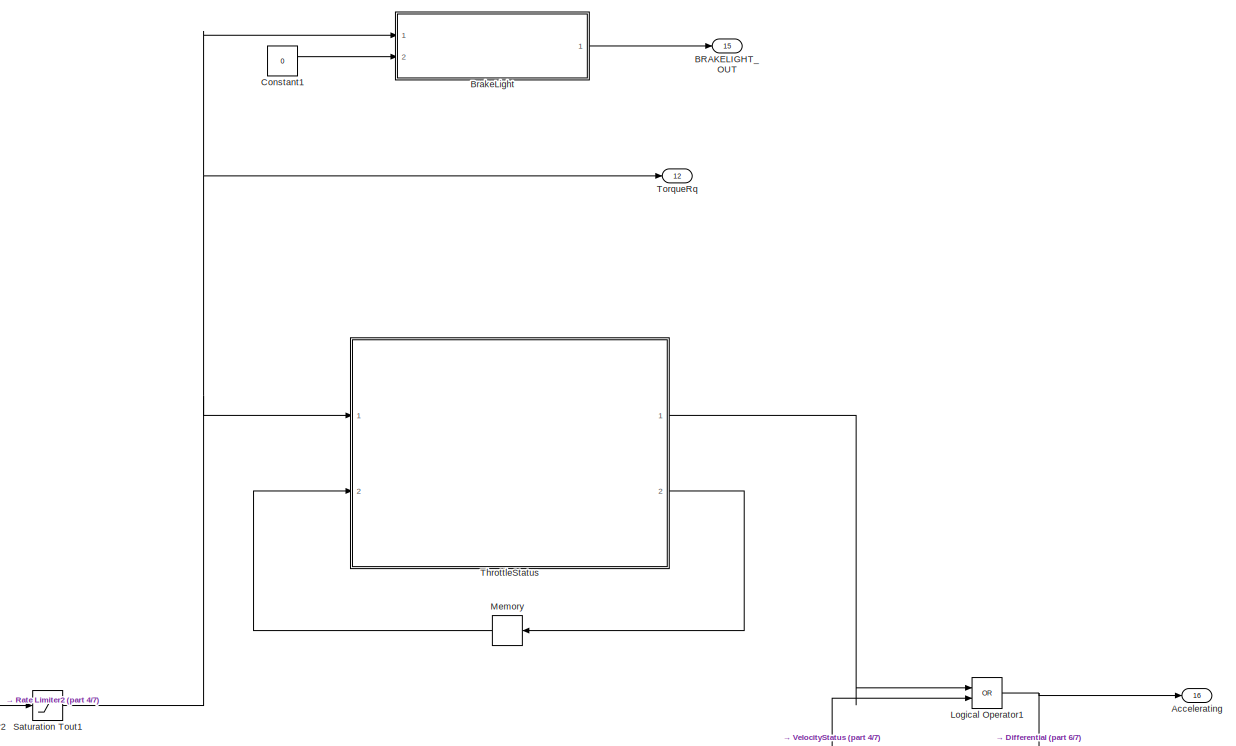
[diagram: root canvas - part 1/7, top right region]
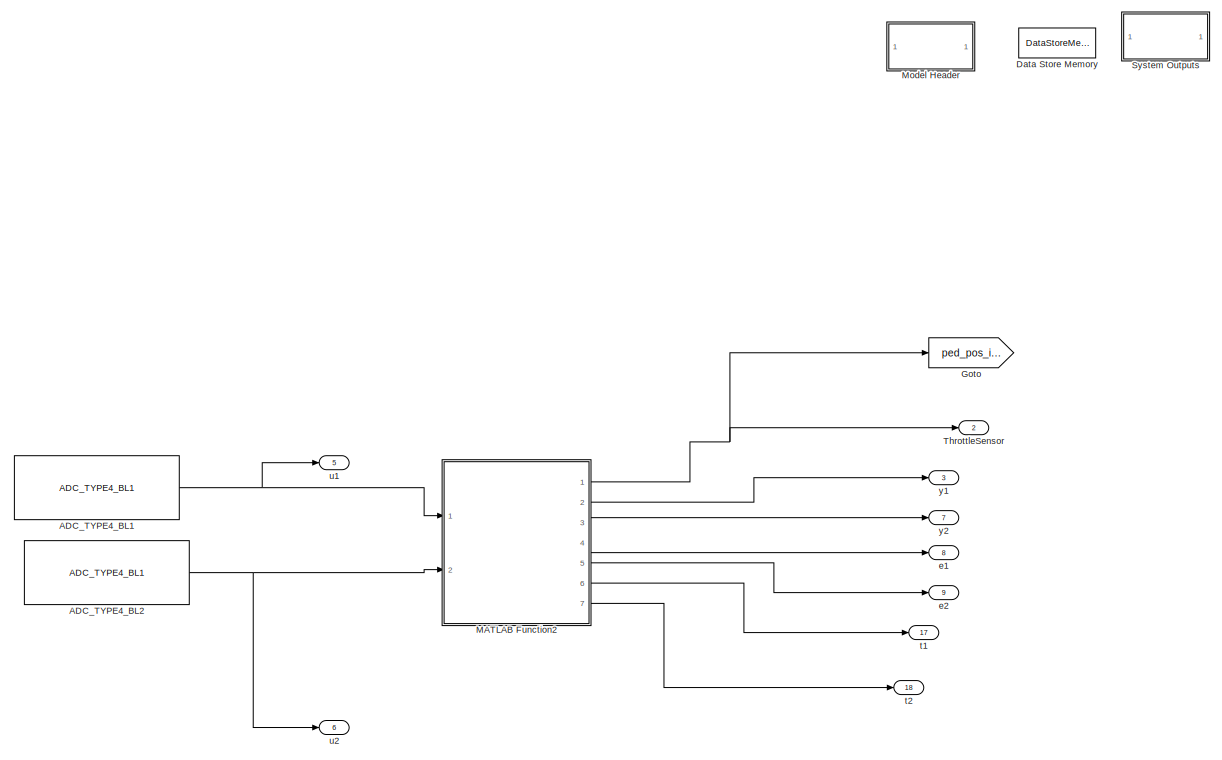
[diagram: root canvas - part 2/7, middle left region]
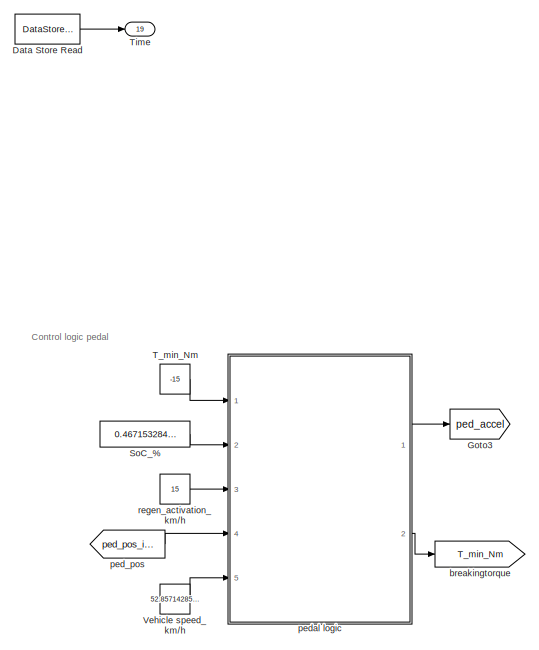
[diagram: root canvas - part 3/7, central region]
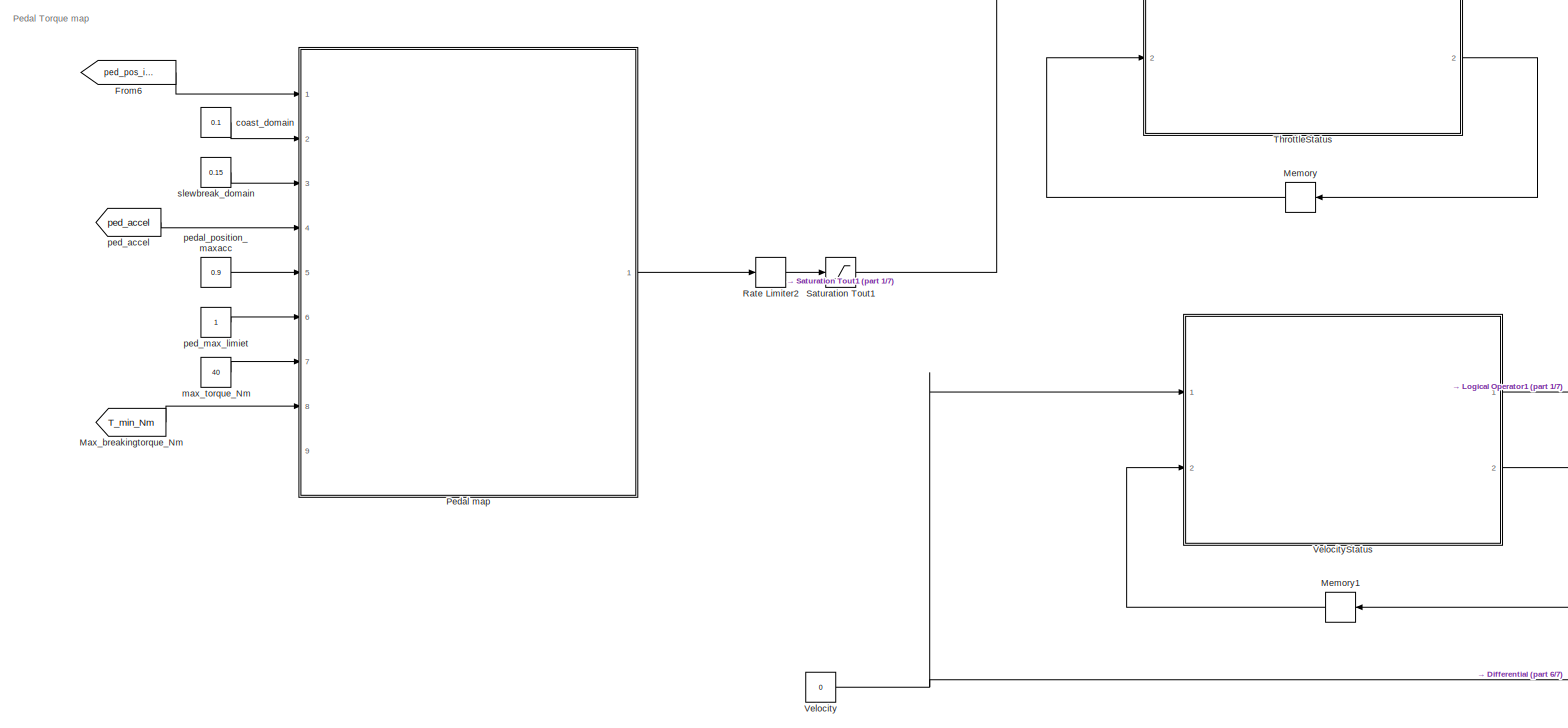
[diagram: root canvas - part 4/7, central region]
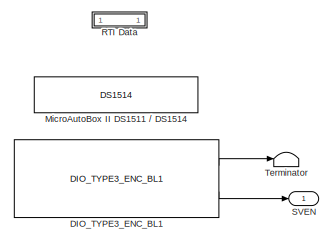
[diagram: root canvas - part 5/7, middle left region]
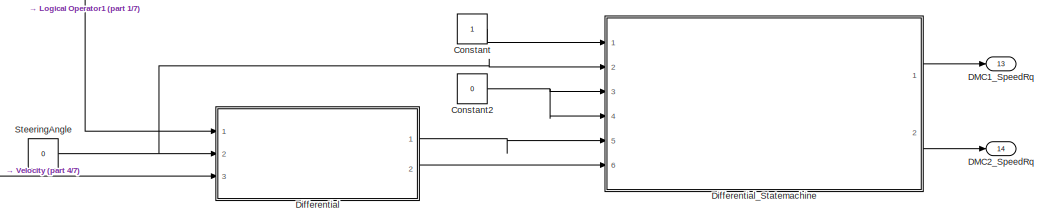
[diagram: root canvas - part 6/7, bottom right region]
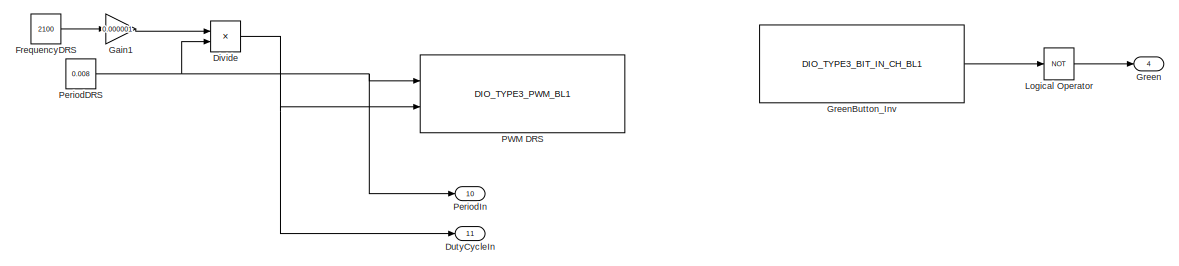
[diagram: root canvas - part 7/7, bottom left region]
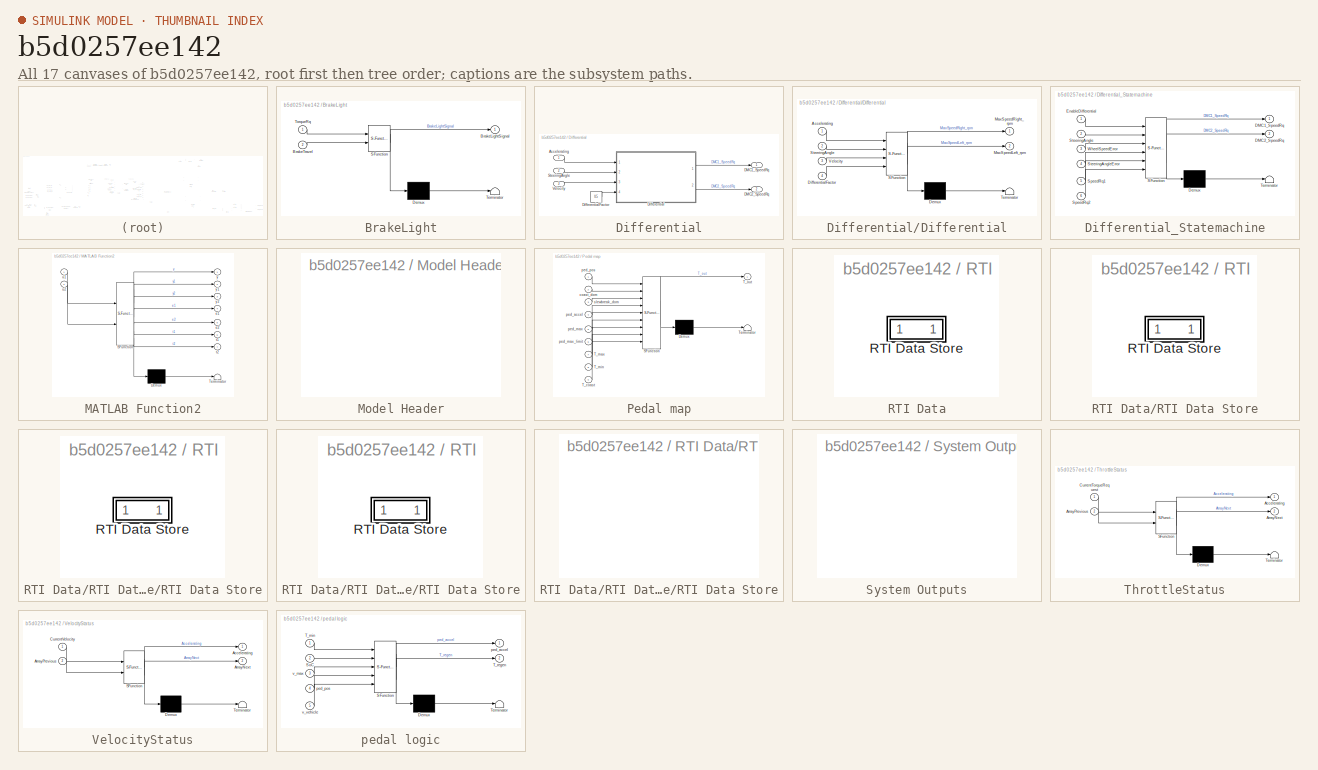
[diagram: thumbnail index - all 17 canvases of the model, root first then tree order]
MODEL slx_b5d0257ee142
KIND model
CONFIG AbsTol = auto
CONFIG FixedStep = 0.001
CONFIG MaxStep = auto
CONFIG MinStep = auto
CONFIG PostLoadFcn = , if any(exist('dsrtsu_mdlpostloadfcn', 'file') == [2, 3, 6]), try dsrtsu_mdlpostloadfcn('Execute', bdroot); catch fprintf('Error in PostLoadFcn (dsrtsu_mdlpostloadfcn) for model "%s":\n %s\n', bdroot, lasterr); end, end, \n
CONFIG RelTol = 1e-3
CONFIG SampleTimeConstraint = Unconstrained
CONFIG Solver = ode1
CONFIG SolverMode = Auto
CONFIG SolverName = ode1
CONFIG StartTime = 0.0
CONFIG StopTime = Inf
BLOCK [Reference] ADC_TYPE4_BL1  REF=rti1401lib_adc_type4/ADC_TYPE4_BL1
  DSProperties = struct('RTI',struct('Version',uint32(2),'BlockType',struct('isSLSource',uint8(1),'isSLSink',uint8(1),'isHWSource',uint8(0),'isHWSink',uint8(1),'isSetup',uint8(0),'isInline',uint8(1),'isNonInline',uint8(0),'isInterrupt',uint8(0),'isChannelwise',uint8(1)),'IOBoardType',{{'DS1401','STD','ADCT4'}},'UnitType','ADC','Identifier','ADC','DialogType','ML','BlockSet','NONE','SlaveProcessor','NONE'))
  Ports = [0, 1]
  RTIBlockInterface = struct('InputPortsActive',0,'InputPortsWidth',int32(1),'InputPortsDataType',{{'SS_BOOLEAN'}},'InputPortsName',{{'Continue'}},'OutputPortsActive',[1 0],'OutputPortsWidth',int32([1 1]),'OutputPortsDataType',{{'SS_DOUBLE','SS_UINT8'}},'OutputPortsName',{{'ADC','Status'}},'DialogFcn','rti1401stdadct4adcgui','SampleTime',{{-1}},'InitLevel',3,'IconTransparency','on','BlockDisplay',{{['ADC TP4\nModule: 1...<+74ch>
  RTIBlockParaDefault = struct('ADCSWStartDisable',0,'ModuleNo',1,'ChannelNo',1,'ConversionMode',1,'SampleMode',1,'TriggerSource',1,'EdgePolarity',1,'ConversionTriggerSource',2,'ConversionEdgePolarity',1,'ConversionPeriod',1e-06,'ConversionPeriodCheck',0,'BurstTriggerSource',1,'BurstEdgePolarity',1,'BurstSize',10,'BurstSizeCheck',0,'DataSetOffset',0,'DataSetOffsetCheck',0,'DataSetLength',1,'DataSetLengthCheck',0,'ReadMod...<+113ch>
  RTIBlockParameters = struct('ADCSWStartDisable',{{0,'OFF',[0 1]}},'ModuleNo',{{1,'OFF',[1 16]}},'ChannelNo',{{1,'OFF',[1 16]}},'ConversionMode',{{1,'OFF',[1 2]}},'SampleMode',{{1,'OFF',[1 2]}},'TriggerSource',{{1,'OFF',[1 5]}},'EdgePolarity',{{1,'OFF',[1 2]}},'ConversionTriggerSource',{{2,'OFF',[1 6]}},'ConversionEdgePolarity',{{1,'OFF',[1 2]}},'ConversionPeriod',{{1e-06,'OFF',[]}},'ConversionPeriodCheck',{{0,'OFF',[]...<+488ch>
  RTISFcnParameters = struct('ADCSWStartDisable','int32','ModuleNo','int32','ChannelNo','int16','ConversionMode','int16','SampleMode','int16','TriggerSource','int16','EdgePolarity','int16','ConversionTriggerSource','int16','ConversionEdgePolarity','int16','ConversionPeriod','double','BurstTriggerSource','int16','BurstEdgePolarity','int16','BurstSize','int16','DataSetOffset','int16','DataSetLength','int16','ReadMode','i...<+99ch>
  SourceBlock = rti1401lib_adc_type4/ADC_TYPE4_BL1
  SourceType = RTI
BLOCK [Reference] ADC_TYPE4_BL2  REF=rti1401lib_adc_type4/ADC_TYPE4_BL1
  DSProperties = struct('RTI',struct('Version',uint32(2),'BlockType',struct('isSLSource',uint8(1),'isSLSink',uint8(1),'isHWSource',uint8(0),'isHWSink',uint8(1),'isSetup',uint8(0),'isInline',uint8(1),'isNonInline',uint8(0),'isInterrupt',uint8(0),'isChannelwise',uint8(1)),'IOBoardType',{{'DS1401','STD','ADCT4'}},'UnitType','ADC','Identifier','ADC','DialogType','ML','BlockSet','NONE','SlaveProcessor','NONE'))
  Ports = [0, 1]
  RTIBlockInterface = struct('InputPortsActive',0,'InputPortsWidth',int32(1),'InputPortsDataType',{{'SS_BOOLEAN'}},'InputPortsName',{{'Continue'}},'OutputPortsActive',[1 0],'OutputPortsWidth',int32([1 1]),'OutputPortsDataType',{{'SS_DOUBLE','SS_UINT8'}},'OutputPortsName',{{'ADC','Status'}},'DialogFcn','rti1401stdadct4adcgui','SampleTime',{{-1}},'InitLevel',3,'IconTransparency','on','BlockDisplay',{{['ADC TP4\nModule: 1...<+74ch>
  RTIBlockParaDefault = struct('ADCSWStartDisable',0,'ModuleNo',1,'ChannelNo',1,'ConversionMode',1,'SampleMode',1,'TriggerSource',1,'EdgePolarity',1,'ConversionTriggerSource',2,'ConversionEdgePolarity',1,'ConversionPeriod',1e-06,'ConversionPeriodCheck',0,'BurstTriggerSource',1,'BurstEdgePolarity',1,'BurstSize',10,'BurstSizeCheck',0,'DataSetOffset',0,'DataSetOffsetCheck',0,'DataSetLength',1,'DataSetLengthCheck',0,'ReadMod...<+113ch>
  RTIBlockParameters = struct('ADCSWStartDisable',{{0,'OFF',[0 1]}},'ModuleNo',{{1,'OFF',[1 16]}},'ChannelNo',{{5,'OFF',[1 16]}},'ConversionMode',{{1,'OFF',[1 2]}},'SampleMode',{{1,'OFF',[1 2]}},'TriggerSource',{{1,'OFF',[1 5]}},'EdgePolarity',{{1,'OFF',[1 2]}},'ConversionTriggerSource',{{2,'OFF',[1 6]}},'ConversionEdgePolarity',{{1,'OFF',[1 2]}},'ConversionPeriod',{{'1e-06','OFF',[]}},'ConversionPeriodCheck',{{0,'OFF',...<+498ch>
  RTISFcnParameters = struct('ADCSWStartDisable','int32','ModuleNo','int32','ChannelNo','int16','ConversionMode','int16','SampleMode','int16','TriggerSource','int16','EdgePolarity','int16','ConversionTriggerSource','int16','ConversionEdgePolarity','int16','ConversionPeriod','double','BurstTriggerSource','int16','BurstEdgePolarity','int16','BurstSize','int16','DataSetOffset','int16','DataSetLength','int16','ReadMode','i...<+99ch>
  SourceBlock = rti1401lib_adc_type4/ADC_TYPE4_BL1
  SourceType = RTI
BLOCK [Outport] Accelerating
  IconDisplay = Port number
  Port = 16
BLOCK [Outport] BRAKELIGHT_OUT
  IconDisplay = Port number
  Port = 15
BLOCK [SubSystem] BrakeLight
  ErrorFcn = Stateflow.Translate.translate
  PermitHierarchicalResolution = ExplicitOnly
  Ports = [2, 1]
  RequestExecContextInheritance = off
  SFBlockType = MATLAB Function
  TreatAsAtomicUnit = on
BLOCK [Demux] BrakeLight/ Demux 
  Outputs = 1
  Ports = [1, 1]
BLOCK [S-Function] BrakeLight/ SFunction 
  EnableBusSupport = on
  FunctionName = sf_sfun
  PortCounts = [2 2]
  Ports = [2, 2]
  Tag = Stateflow S-Function HallSensorTest 4
BLOCK [Terminator] BrakeLight/ Terminator 
BLOCK [Outport] BrakeLight/BrakeLightSignal
  IconDisplay = Port number
BLOCK [Inport] BrakeLight/BrakeTravel
  IconDisplay = Port number
  Port = 2
BLOCK [Inport] BrakeLight/TorqueRq
  IconDisplay = Port number
BLOCK [Constant] Constant
BLOCK [Constant] Constant1
  Value = 0
BLOCK [Constant] Constant2
  Value = 0
BLOCK [Reference] DIO_TYPE3_ENC_BL1  REF=rti1401lib_dio_type3/DIO_TYPE3_ENC_BL1
  DSProperties = struct('RTI',struct('Version',uint32(2),'BlockType',struct('isSLSource',uint8(1),'isSLSink',uint8(0),'isHWSource',uint8(1),'isHWSink',uint8(0),'isSetup',uint8(0),'isInline',uint8(1),'isNonInline',uint8(0),'isInterrupt',uint8(0),'isChannelwise',uint8(1)),'IOBoardType',{{'DS1401','STD','DIOT3'}},'UnitType','ENC','Identifier','ENC','DialogType','ML','BlockSet','NONE','SlaveProcessor','NONE'))
  Ports = [0, 2]
  RTIBlockInterface = struct('OutputPortsWidth',int32([1 1]),'OutputPortsActive',[1 1],'OutputPortsName',{{'Position','Speed'}},'BlockDisplay',{{['DIO TP3 ENCODER\nModule: 1\nPort: 1\nChannel: 3'],'center'}},'IconTransparency','on','InitLevel',3,'DialogFcn','rti1401stddiot3encgui','BlockName',struct('Token',{{'DIO_TYPE3_ENC_BL1'}}))
  RTIBlockParaDefault = struct('ModuleNo',1,'PortNo',1,'ChannelNo',1,'MinPosValue',-2097152,'MaxPosValue',2097151.75,'InitPosValue',0,'IndexSetMode',1,'IndexPosValue',0,'IndexGateMode',0,'NoiseFilter',1,'BuildCheckIndexMode',0,'TLCFileName','rti1401dio_t3_enc','EnableInterrupt',0,'TriggerEdgeType',1)
  RTIBlockParameters = struct('ModuleNo',{{1,'OFF',[1 16]}},'PortNo',{{1,'OFF',[1 3]}},'ChannelNo',{{3,'OFF',[1 15]}},'MinPosValue',{{'-2097152','ON',[-2097152 2097151.5]}},'MaxPosValue',{{'2097151.75','ON',[-2097151.75 2097151.75]}},'InitPosValue',{{'0','ON',[-2097152 2097151.75]}},'IndexSetMode',{{1,'OFF',[1 3]}},'IndexPosValue',{{'0','ON',[-2097152 2097151.75]}},'IndexGateMode',{{0,'OFF',[0 1]}},'NoiseFilter',{{1,'OF...<+170ch>
  RTISFcnParameters = struct('ModuleNo','int32','PortNo','int16','ChannelNo','int16','MinPosValue','double','MaxPosValue','double','InitPosValue','double','IndexSetMode','int16','IndexPosValue','double','IndexGateMode','int16','NoiseFilter','int16','BuildCheckIndexMode','int16','TLCFileName','char','EnableInterrupt','int16','TriggerEdgeType','int32')
  SourceBlock = rti1401lib_dio_type3/DIO_TYPE3_ENC_BL1
  SourceType = RTI
BLOCK [Outport] DMC1_SpeedRq
  IconDisplay = Port number
  Port = 13
BLOCK [Outport] DMC2_SpeedRq
  IconDisplay = Port number
  Port = 14
BLOCK [DataStoreMemory] Data Store Memory
  DataStoreName = CurrentTime
  RTWStateStorageClass = ExportedGlobal
  ReadBeforeWriteMsg = warning
  WriteAfterReadMsg = warning
  WriteAfterWriteMsg = warning
BLOCK [DataStoreRead] Data Store Read
  DataStoreName = CurrentTime
  Ports = [0, 1]
BLOCK [SubSystem] Differential
  Ports = [3, 2]
  RequestExecContextInheritance = off
BLOCK [Inport] Differential/Accelerating
  IconDisplay = Port number
BLOCK [Outport] Differential/DMC1_SpeedRq
  IconDisplay = Port number
BLOCK [Outport] Differential/DMC2_SpeedRq
  IconDisplay = Port number
  Port = 2
BLOCK [SubSystem] Differential/Differential
  ErrorFcn = Stateflow.Translate.translate
  PermitHierarchicalResolution = ExplicitOnly
  Ports = [4, 2]
  RequestExecContextInheritance = off
  SFBlockType = MATLAB Function
  TreatAsAtomicUnit = on
BLOCK [Demux] Differential/Differential/ Demux 
  Outputs = 1
  Ports = [1, 1]
BLOCK [S-Function] Differential/Differential/ SFunction 
  EnableBusSupport = on
  FunctionName = sf_sfun
  PortCounts = [4 3]
  Ports = [4, 3]
  Tag = Stateflow S-Function HallSensorTest 15
BLOCK [Terminator] Differential/Differential/ Terminator 
BLOCK [Inport] Differential/Differential/Accelerating
  IconDisplay = Port number
BLOCK [Inport] Differential/Differential/DifferentialFactor
  IconDisplay = Port number
  Port = 4
BLOCK [Outport] Differential/Differential/MaxSpeedLeft_rpm
  IconDisplay = Port number
  Port = 2
BLOCK [Outport] Differential/Differential/MaxSpeedRight_rpm
  IconDisplay = Port number
BLOCK [Inport] Differential/Differential/SteeringAngle
  IconDisplay = Port number
  Port = 2
BLOCK [Inport] Differential/Differential/Velocity
  IconDisplay = Port number
  Port = 3
BLOCK [Constant] Differential/DifferentialFactor
  Value = 0.5
BLOCK [Inport] Differential/SteeringAngle
  IconDisplay = Port number
  Port = 2
BLOCK [Inport] Differential/Velocity
  IconDisplay = Port number
  Port = 3
BLOCK [SubSystem] Differential_Statemachine
  ErrorFcn = Stateflow.Translate.translate
  PermitHierarchicalResolution = ExplicitOnly
  Ports = [6, 2]
  RequestExecContextInheritance = off
  SFBlockType = Chart
  TreatAsAtomicUnit = on
BLOCK [Demux] Differential_Statemachine/ Demux 
  Outputs = 1
  Ports = [1, 1]
BLOCK [S-Function] Differential_Statemachine/ SFunction 
  EnableBusSupport = on
  FunctionName = sf_sfun
  PortCounts = [6 3]
  Ports = [6, 3]
  Tag = Stateflow S-Function HallSensorTest 14
BLOCK [Terminator] Differential_Statemachine/ Terminator 
BLOCK [Outport] Differential_Statemachine/DMC1_SpeedRq
  IconDisplay = Port number
BLOCK [Outport] Differential_Statemachine/DMC2_SpeedRq
  IconDisplay = Port number
  Port = 2
BLOCK [Inport] Differential_Statemachine/EnableDifferential
  IconDisplay = Port number
BLOCK [Inport] Differential_Statemachine/SpeedRq1
  IconDisplay = Port number
  Port = 5
BLOCK [Inport] Differential_Statemachine/SpeedRq2
  IconDisplay = Port number
  Port = 6
BLOCK [Inport] Differential_Statemachine/SteeringAngle
  IconDisplay = Port number
  Port = 2
BLOCK [Inport] Differential_Statemachine/SteeringAngleError
  IconDisplay = Port number
  Port = 4
BLOCK [Inport] Differential_Statemachine/WheelSpeedError
  IconDisplay = Port number
  Port = 3
BLOCK [Product] Divide
  InputSameDT = off
  Inputs = */
  OutDataTypeStr = Inherit: Inherit via internal rule
  Ports = [2, 1]
  RndMeth = Floor
  SaturateOnIntegerOverflow = off
BLOCK [Outport] DutyCycleIn
  IconDisplay = Port number
  Port = 11
BLOCK [Constant] FrequencyDRS
  Value = 2100
BLOCK [From] From6
  GotoTag = ped_pos_idle
BLOCK [Gain] Gain1
  Gain = 0.000001
  OutDataTypeStr = Inherit: Inherit via internal rule
  ParamDataTypeStr = Inherit: Inherit via internal rule
  SaturateOnIntegerOverflow = off
BLOCK [Goto] Goto
  GotoTag = ped_pos_idle
BLOCK [Goto] Goto3
  GotoTag = ped_accel
BLOCK [Outport] Green
  IconDisplay = Port number
  Port = 4
BLOCK [Reference] GreenButton_Inv  REF=rti1401lib_dio_type3/DIO_TYPE3_BIT_IN_CH_BL1
  DSProperties = struct('RTI',struct('Version',uint32(2),'BlockType',struct('isSLSource',uint8(1),'isSLSink',uint8(0),'isHWSource',uint8(1),'isHWSink',uint8(0),'isSetup',uint8(0),'isInline',uint8(1),'isNonInline',uint8(0),'isInterrupt',uint8(0),'isChannelwise',uint8(1)),'IOBoardType',{{'DS1401','STD','DIOT3'}},'UnitType','BIT','Identifier','BITINCH','DialogType','ML','BlockSet','NONE','SlaveProcessor','NONE'))
  Ports = [0, 1]
  RTIBlockInterface = struct('OutputPortsWidth',int32(1),'OutputPortsDataType',{{'SS_BOOLEAN'}},'OutputPortsActive',1,'OutputPortsName',{{'Out'}},'BlockDisplay',{{['DIO TP3 BIT IN\n Channelwise\nModule: 1\nPort: 1\nChannel: 1'],'center'}},'IconTransparency','on','InitLevel',3,'DialogFcn','rti1401stddiot3bitinchgui','BlockName',struct('Token',{{'DIO_TYPE3_BIT_IN_CH_BL1'}}))
  RTIBlockParaDefault = struct('ModuleNo',1,'PortNo',1,'ChannelNo',1,'TLCFileName','rti1401dio_t3_bit_in_ch','EnableInterrupt',0,'TriggerEdgeType',1)
  RTIBlockParameters = struct('ModuleNo',{{1,'OFF',[1 16]}},'PortNo',{{1,'OFF',[1 3]}},'ChannelNo',{{1,'OFF',[1 16]}},'TLCFileName',{{'rti1401dio_t3_bit_in_ch','OFF',[]}},'EnableInterrupt',{{0,'OFF',[0 1]}},'TriggerEdgeType',{{1,'OFF',[1 3]}})
  RTISFcnParameters = struct('ModuleNo','int32','PortNo','int16','ChannelNo','int16','TLCFileName','char','EnableInterrupt','int16','TriggerEdgeType','int32')
  SourceBlock = rti1401lib_dio_type3/DIO_TYPE3_BIT_IN_CH_BL1
  SourceType = RTI
BLOCK [Logic] Logical Operator
  AllPortsSameDT = off
  Operator = NOT
  OutDataTypeStr = boolean
  Ports = [1, 1]
BLOCK [Logic] Logical Operator1
  AllPortsSameDT = off
  Operator = OR
  OutDataTypeStr = boolean
  Ports = [2, 1]
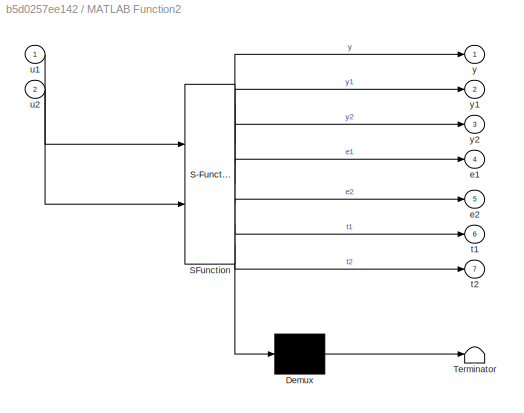
BLOCK [SubSystem] MATLAB Function2
  ErrorFcn = Stateflow.Translate.translate
  PermitHierarchicalResolution = ExplicitOnly
  Ports = [2, 7]
  RequestExecContextInheritance = off
  SFBlockType = MATLAB Function
  TreatAsAtomicUnit = on
BLOCK [Demux] MATLAB Function2/ Demux 
  Outputs = 1
  Ports = [1, 1]
BLOCK [S-Function] MATLAB Function2/ SFunction 
  EnableBusSupport = on
  FunctionName = sf_sfun
  PortCounts = [2 8]
  Ports = [2, 8]
  Tag = Stateflow S-Function HallSensorTest 12
BLOCK [Terminator] MATLAB Function2/ Terminator 
BLOCK [Outport] MATLAB Function2/e1
  IconDisplay = Port number
  Port = 4
BLOCK [Outport] MATLAB Function2/e2
  IconDisplay = Port number
  Port = 5
BLOCK [Outport] MATLAB Function2/t1
  IconDisplay = Port number
  Port = 6
BLOCK [Outport] MATLAB Function2/t2
  IconDisplay = Port number
  Port = 7
BLOCK [Inport] MATLAB Function2/u1
  IconDisplay = Port number
BLOCK [Inport] MATLAB Function2/u2
  IconDisplay = Port number
  Port = 2
BLOCK [Outport] MATLAB Function2/y
  IconDisplay = Port number
BLOCK [Outport] MATLAB Function2/y1
  IconDisplay = Port number
  Port = 2
BLOCK [Outport] MATLAB Function2/y2
  IconDisplay = Port number
  Port = 3
BLOCK [From] Max_breakingtorque_Nm
  GotoTag = T_min_Nm
BLOCK [Memory] Memory
  InheritSampleTime = on
  X0 = zeros(10,1)
BLOCK [Memory] Memory1
  InheritSampleTime = on
  X0 = zeros(10,1)
BLOCK [Reference] MicroAutoBox II DS1511 // DS1514  REF=rtilib1401/MicroAutoBox II DS1511 // DS1514
  FunctionWithSeparateData = off
  GeneratePreprocessorConditionals = off
  Ports = []
  ShowPortLabels = FromPortIcon
  SourceBlock = rtilib1401/MicroAutoBox II DS1511 // DS1514
  SourceType = DSBUTTON
  SystemSampleTime = -1
BLOCK [SubSystem] Model Header
  CopyFcn = cccopyfcn(gcb)
  OpenFcn = ccopenfcn('Model Header')
  Ports = []
  RequestExecContextInheritance = off
BLOCK [Reference] PWM DRS  REF=rti1401lib_dio_type3/DIO_TYPE3_PWM_BL1
  DSProperties = struct('RTI',struct('Version',uint32(2),'BlockType',struct('isSLSource',uint8(0),'isSLSink',uint8(1),'isHWSource',uint8(0),'isHWSink',uint8(1),'isSetup',uint8(0),'isInline',uint8(1),'isNonInline',uint8(0),'isInterrupt',uint8(0),'isChannelwise',uint8(1)),'IOBoardType',{{'DS1401','STD','DIOT3'}},'UnitType','PWM','Identifier','PWM','DialogType','ML','BlockSet','NONE','SlaveProcessor','NONE'))
  Ports = [2]
  RTIBlockInterface = struct('InputPortsWidth',int32([1 1]),'InputPortsActive',[1 1],'InputPortsName',{{'Period',['Duty Cycle']}},'BlockDisplay',{{['DIO TP3 PWM\nModule: 1\nPort: 1\nChannel: 7'],'center'}},'IconTransparency','on','InitLevel',3,'DialogFcn','rti1401stddiot3pwmgui','BlockName',struct('Token',{{'DIO_TYPE3_PWM_BL1'}}))
  RTIBlockParaDefault = struct('ModuleNo',1,'PortNo',1,'ChannelNo',1,'SupplyRailsCh',[1 1],'UpdateMode',1,'PeriodRange',7,'DutyCycleInit',0,'PeriodInit',5e-05,'TerminationMode',0,'OutputTermValidate',0,'OutputTermBuildCheck',0,'DutyCycleTerm',0,'PeriodTerm',5e-05,'TLCFileName','rti1401dio_t3_pwm','EnableInterrupt',0,'TriggerEdgeType',1)
  RTIBlockParameters = struct('ModuleNo',{{1,'OFF',[1 16]}},'PortNo',{{1,'OFF',[1 3]}},'ChannelNo',{{7,'OFF',[1 16]}},'SupplyRailsCh',{{[1 1],'OFF',[0 1 0 1]}},'UpdateMode',{{1,'ON',[1 2]}},'PeriodRange',{{7,'OFF',[1 16]}},'DutyCycleInit',{{'0','OFF',[0 1]}},'PeriodInit',{{'5e-05','OFF',[]}},'TerminationMode',{{0,'OFF',[0 1]}},'OutputTermValidate',{{0,'OFF',[0 1]}},'OutputTermBuildCheck',{{0,'OFF',[]}},'DutyCycleTerm',{...<+172ch>
  RTISFcnParameters = struct('ModuleNo','int32','PortNo','int16','ChannelNo','int16','SupplyRailsCh','int16','UpdateMode','int16','PeriodRange','int16','DutyCycleInit','double','PeriodInit','double','TerminationMode','int16','OutputTermValidate','int16','DutyCycleTerm','double','PeriodTerm','double','TLCFileName','char','EnableInterrupt','int16','TriggerEdgeType','int32')
  SourceBlock = rti1401lib_dio_type3/DIO_TYPE3_PWM_BL1
  SourceType = RTI
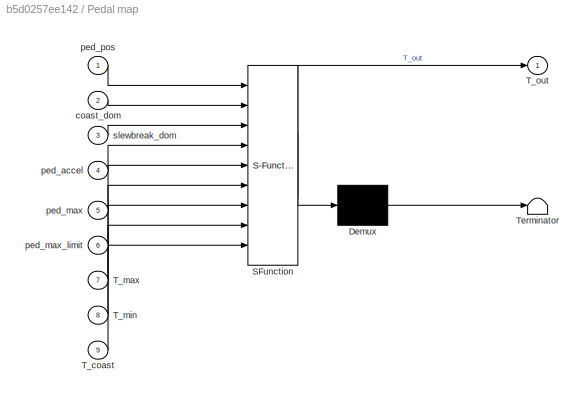
BLOCK [SubSystem] Pedal map
  ErrorFcn = Stateflow.Translate.translate
  PermitHierarchicalResolution = ExplicitOnly
  Ports = [9, 1]
  RequestExecContextInheritance = off
  SFBlockType = MATLAB Function
  TreatAsAtomicUnit = on
BLOCK [Demux] Pedal map/ Demux 
  Outputs = 1
  Ports = [1, 1]
BLOCK [S-Function] Pedal map/ SFunction 
  EnableBusSupport = on
  FunctionName = sf_sfun
  PortCounts = [9 2]
  Ports = [9, 2]
  Tag = Stateflow S-Function HallSensorTest 8
BLOCK [Terminator] Pedal map/ Terminator 
BLOCK [Inport] Pedal map/T_coast
  IconDisplay = Port number
  Port = 9
BLOCK [Inport] Pedal map/T_max
  IconDisplay = Port number
  Port = 7
BLOCK [Inport] Pedal map/T_min
  IconDisplay = Port number
  Port = 8
BLOCK [Outport] Pedal map/T_out
  IconDisplay = Port number
BLOCK [Inport] Pedal map/coast_dom
  IconDisplay = Port number
  Port = 2
BLOCK [Inport] Pedal map/ped_accel
  IconDisplay = Port number
  Port = 4
BLOCK [Inport] Pedal map/ped_max
  IconDisplay = Port number
  Port = 5
BLOCK [Inport] Pedal map/ped_max_limit
  IconDisplay = Port number
  Port = 6
BLOCK [Inport] Pedal map/ped_pos
  IconDisplay = Port number
BLOCK [Inport] Pedal map/slewbreak_dom
  IconDisplay = Port number
  Port = 3
BLOCK [Constant] PeriodDRS
  Value = 0.008
BLOCK [Outport] PeriodIn
  IconDisplay = Port number
  Port = 10
BLOCK [SubSystem] RTI Data
  CopyFcn = if exist('rtidc'), try,  rtidc('DataHostBlockClbCopy', gcbh); catch, disp(['Warning: ''CopyFcn'' for RTI Data block failed: ' lasterr]); end, end,
  DeleteFcn = if exist('rtidc'), try,  rtidc('DataHostBlockClbDelete', gcbh); catch, disp(['Warning: ''DeleteFcn'' for RTI Data block failed: ' lasterr]); end, end,
  LoadFcn = if exist('rtidc'), try,  rtidc('DataHostBlockClbLoad', gcbh); catch, disp(['Warning: ''LoadFcn'' for RTI Data block failed: ' lasterr]); end, end,
  ModelCloseFcn = if exist('rtidc'), try,  rtidc('DataHostBlockClbModelClose', gcbh); catch, disp(['Warning: ''ModelCloseFcn'' for RTI Data block failed: ' lasterr]); end, end,
  NameChangeFcn = if exist('rtidc'), try,  rtidc('DataHostBlockClbNameChange', gcbh); catch, disp(['Warning: ''NameChangeFcn'' for RTI Data block failed: ' lasterr]); end, end,
  Ports = []
  PostSaveFcn = if exist('rtidc'), try,  rtidc('DataHostBlockClbPostSave', gcbh); catch, disp(['Warning: ''PostSaveFcn'' for RTI Data block failed: ' lasterr]); end, end,
  PreSaveFcn = if exist('rtidc'), try,  rtidc('DataHostBlockClbPreSave', gcbh); catch, disp(['Warning: ''PreSaveFcn'' for RTI Data block failed: ' lasterr]); end, end,
  RequestExecContextInheritance = off
  Tag = struct('RTIDataServer',struct('RTIDataServerVs','2','RTIModelDescription','struct(''main'',''HallSensorTest'',''sub'','''',''isMp'',0)'))
BLOCK [SubSystem] RTI Data/RTI Data Store
  Ports = []
  RequestExecContextInheritance = off
  Tag = struct('private',struct('version',struct('dsVer',uint32(2),'dsVerCreation',uint32(2),'RTI',struct('ver','7.5','type','RTI1401')),'access',struct('type','Model','isPerm',1,'created',['11-May-2016 13:41:37'],'modified',['18-May-2016 19:41:24'],'location','')),'public',struct('main',struct('data',[]),'sub',struct('name',{{'HallSensorTest'}},'data',{{struct('TH',struct('thTaskInfo',struct('taskType',{...<+891ch>
BLOCK [SubSystem] RTI Data/RTI Data Store/RTI Data Store
  Ports = []
  RequestExecContextInheritance = off
BLOCK [SubSystem] RTI Data/RTI Data Store/RTI Data Store/RTI Data Store
  Ports = []
  RequestExecContextInheritance = off
BLOCK [SubSystem] RTI Data/RTI Data Store/RTI Data Store/RTI Data Store/RTI Data Store
  Ports = []
  RequestExecContextInheritance = off
BLOCK [RateLimiter] Rate Limiter2
  FallingSlewLimit = -2000
  RisingSlewLimit = 2000
  SampleTimeMode = inherited
BLOCK [Outport] SVEN
  IconDisplay = Port number
BLOCK [Saturate] Saturation Tout1
  InputPortMap = u0
  LowerLimit = -39
  Ports = [1, 1]
  UpperLimit = 39
BLOCK [Constant] SoC_%
  Value = 0.4671532846715328
BLOCK [Constant] SteeringAngle
  Value = 0
BLOCK [SubSystem] System Outputs
  CopyFcn = cccopyfcn(gcb)
  OpenFcn = ccopenfcn('System Outputs Function')
  Ports = []
  RequestExecContextInheritance = off
BLOCK [Constant] T_min_Nm
  Value = -15
BLOCK [Terminator] Terminator
BLOCK [Outport] ThrottleSensor
  IconDisplay = Port number
  Port = 2
BLOCK [SubSystem] ThrottleStatus
  ErrorFcn = Stateflow.Translate.translate
  PermitHierarchicalResolution = ExplicitOnly
  Ports = [2, 2]
  RequestExecContextInheritance = off
  SFBlockType = MATLAB Function
  TreatAsAtomicUnit = on
BLOCK [Demux] ThrottleStatus/ Demux 
  Outputs = 1
  Ports = [1, 1]
BLOCK [S-Function] ThrottleStatus/ SFunction 
  EnableBusSupport = on
  FunctionName = sf_sfun
  PortCounts = [2 3]
  Ports = [2, 3]
  Tag = Stateflow S-Function HallSensorTest 2
BLOCK [Terminator] ThrottleStatus/ Terminator 
BLOCK [Outport] ThrottleStatus/Accelerating
  IconDisplay = Port number
BLOCK [Outport] ThrottleStatus/ArrayNext
  IconDisplay = Port number
  Port = 2
BLOCK [Inport] ThrottleStatus/ArrayPrevious
  IconDisplay = Port number
  Port = 2
BLOCK [Inport] ThrottleStatus/CurrentTorqueRequest
  IconDisplay = Port number
BLOCK [Outport] Time
  IconDisplay = Port number
  Port = 19
BLOCK [Outport] TorqueRq
  IconDisplay = Port number
  Port = 12
BLOCK [Constant] Vehicle speed_km//h
  Value = 52.85714285714285
BLOCK [Constant] Velocity
  Value = 0
BLOCK [SubSystem] VelocityStatus
  ErrorFcn = Stateflow.Translate.translate
  PermitHierarchicalResolution = ExplicitOnly
  Ports = [2, 2]
  RequestExecContextInheritance = off
  SFBlockType = MATLAB Function
  TreatAsAtomicUnit = on
BLOCK [Demux] VelocityStatus/ Demux 
  Outputs = 1
  Ports = [1, 1]
BLOCK [S-Function] VelocityStatus/ SFunction 
  EnableBusSupport = on
  FunctionName = sf_sfun
  PortCounts = [2 3]
  Ports = [2, 3]
  Tag = Stateflow S-Function HallSensorTest 3
BLOCK [Terminator] VelocityStatus/ Terminator 
BLOCK [Outport] VelocityStatus/Accelerating
  IconDisplay = Port number
BLOCK [Outport] VelocityStatus/ArrayNext
  IconDisplay = Port number
  Port = 2
BLOCK [Inport] VelocityStatus/ArrayPrevious
  IconDisplay = Port number
  Port = 2
BLOCK [Inport] VelocityStatus/CurrentVelocity
  IconDisplay = Port number
BLOCK [Goto] breakingtorque
  GotoTag = T_min_Nm
BLOCK [Constant] coast_domain
  Value = 0.1
BLOCK [Outport] e1
  IconDisplay = Port number
  Port = 8
BLOCK [Outport] e2
  IconDisplay = Port number
  Port = 9
BLOCK [Constant] max_torque_Nm
  Value = 40
BLOCK [From] ped_accel
  GotoTag = ped_accel
BLOCK [Constant] ped_max_limiet
BLOCK [From] ped_pos
  GotoTag = ped_pos_idle
BLOCK [SubSystem] pedal logic
  ErrorFcn = Stateflow.Translate.translate
  PermitHierarchicalResolution = ExplicitOnly
  Ports = [5, 2]
  RequestExecContextInheritance = off
  SFBlockType = Chart
  TreatAsAtomicUnit = on
BLOCK [Demux] pedal logic/ Demux 
  Outputs = 1
  Ports = [1, 1]
BLOCK [S-Function] pedal logic/ SFunction 
  EnableBusSupport = on
  FunctionName = sf_sfun
  PortCounts = [5 3]
  Ports = [5, 3]
  Tag = Stateflow S-Function HallSensorTest 1
BLOCK [Terminator] pedal logic/ Terminator 
BLOCK [Inport] pedal logic/SoC
  IconDisplay = Port number
  Port = 2
BLOCK [Inport] pedal logic/T_min
  IconDisplay = Port number
BLOCK [Outport] pedal logic/T_regen
  IconDisplay = Port number
  Port = 2
BLOCK [Outport] pedal logic/ped_accel
  IconDisplay = Port number
BLOCK [Inport] pedal logic/ped_pos
  IconDisplay = Port number
  Port = 4
BLOCK [Inport] pedal logic/v_max
  IconDisplay = Port number
  Port = 3
BLOCK [Inport] pedal logic/v_vehicle
  IconDisplay = Port number
  Port = 5
BLOCK [Constant] pedal_position_maxacc
  Value = 0.9
BLOCK [Constant] regen_activation_km//h
  Value = 15
BLOCK [Constant] slewbreak_domain
  Value = 0.15
BLOCK [Outport] t1
  IconDisplay = Port number
  Port = 17
BLOCK [Outport] t2
  IconDisplay = Port number
  Port = 18
BLOCK [Outport] u1
  IconDisplay = Port number
  Port = 5
BLOCK [Outport] u2
  IconDisplay = Port number
  Port = 6
BLOCK [Outport] y1
  IconDisplay = Port number
  Port = 3
BLOCK [Outport] y2
  IconDisplay = Port number
  Port = 7
ANNOTATION (root): Control logic pedal
ANNOTATION (root): Pedal Torque map
NET ADC_TYPE4_BL1:1 -> MATLAB Function2:1, u1:1
NET ADC_TYPE4_BL2:1 -> MATLAB Function2:2, u2:1
LINE BrakeLight:1 -> BRAKELIGHT_OUT:1
LINE Constant1:1 -> BrakeLight:2
NET Constant2:1 -> Differential_Statemachine:3, Differential_Statemachine:4
LINE Constant:1 -> Differential_Statemachine:1
LINE DIO_TYPE3_ENC_BL1:1 -> Terminator:1
LINE DIO_TYPE3_ENC_BL1:2 -> SVEN:1
LINE Data Store Read:1 -> Time:1
LINE Differential/Accelerating:1 -> Differential/Differential:1
LINE Differential/Differential:1 -> Differential/DMC1_SpeedRq:1
LINE Differential/Differential:2 -> Differential/DMC2_SpeedRq:1
LINE Differential/DifferentialFactor:1 -> Differential/Differential:4
LINE Differential/SteeringAngle:1 -> Differential/Differential:2
LINE Differential/Velocity:1 -> Differential/Differential:3
LINE Differential:1 -> Differential_Statemachine:5
LINE Differential:2 -> Differential_Statemachine:6
LINE Differential_Statemachine:1 -> DMC1_SpeedRq:1
LINE Differential_Statemachine:2 -> DMC2_SpeedRq:1
NET Divide:1 -> DutyCycleIn:1, PWM DRS:2
LINE FrequencyDRS:1 -> Gain1:1
LINE From6:1 -> Pedal map:1
LINE Gain1:1 -> Divide:1
LINE GreenButton_Inv:1 -> Logical Operator:1
NET Logical Operator1:1 -> Accelerating:1, Differential:1
LINE Logical Operator:1 -> Green:1
NET MATLAB Function2:1 -> Goto:1, ThrottleSensor:1
LINE MATLAB Function2:2 -> y1:1
LINE MATLAB Function2:3 -> y2:1
LINE MATLAB Function2:4 -> e1:1
LINE MATLAB Function2:5 -> e2:1
LINE MATLAB Function2:6 -> t1:1
LINE MATLAB Function2:7 -> t2:1
LINE Max_breakingtorque_Nm:1 -> Pedal map:8
LINE Memory1:1 -> VelocityStatus:2
LINE Memory:1 -> ThrottleStatus:2
LINE Pedal map:1 -> Rate Limiter2:1
NET PeriodDRS:1 -> Divide:2, PWM DRS:1, PeriodIn:1
LINE Rate Limiter2:1 -> Saturation Tout1:1
NET Saturation Tout1:1 -> BrakeLight:1, ThrottleStatus:1, TorqueRq:1
LINE SoC_%:1 -> pedal logic:2
NET SteeringAngle:1 -> Differential:2, Differential_Statemachine:2
LINE T_min_Nm:1 -> pedal logic:1
LINE ThrottleStatus:1 -> Logical Operator1:1
LINE ThrottleStatus:2 -> Memory:1
LINE Vehicle speed_km//h:1 -> pedal logic:5
NET Velocity:1 -> Differential:3, VelocityStatus:1
LINE VelocityStatus:1 -> Logical Operator1:2
LINE VelocityStatus:2 -> Memory1:1
LINE coast_domain:1 -> Pedal map:2
LINE max_torque_Nm:1 -> Pedal map:7
LINE ped_accel:1 -> Pedal map:4
LINE ped_max_limiet:1 -> Pedal map:6
LINE ped_pos:1 -> pedal logic:4
LINE pedal logic:1 -> Goto3:1
LINE pedal logic:2 -> breakingtorque:1
LINE pedal_position_maxacc:1 -> Pedal map:5
LINE regen_activation_km//h:1 -> pedal logic:3
LINE slewbreak_domain:1 -> Pedal map:3
note: NET lines group one-source signal fan-out (src -> all destinations, sorted); 1:1 wires keep LINE
CHART pedal logic states=4 transitions=6
  STATE_LABEL 'Driving'
  STATE_LABEL 'Disable_regen %SoC is to high.\nentry:\nped_accel=0.45;\nT_regen=0;'
  STATE_LABEL 'Activate_regen\nentry:\nped_accel=0.45;\nT0= -5; %Regentorque at v_max [Nm]\nduring:\n% velocity dependant braking torque\nif v_vehicle<15\n    T_regen=T_min/15\nelseif v_vehicle<50\n    T_regen=T_min\nelse\n    T_regen=(T_min-T0)/(50-100)*(v_vehicle-100)+T0\nend\n'
  STATE_LABEL '[SoC<0.95]'
  STATE_LABEL '[SoC>0.95]'
  STATE_LABEL 'Disable_regen %SoC is to high.\nentry:\nped_accel=0.45;\nT_regen=0;'
  STATE_LABEL 'Activate_regen\nentry:\nped_accel=0.45;\nT0= -5; %Regentorque at v_max [Nm]\nduring:\n% velocity dependant braking torque\nif v_vehicle<15\n    T_regen=T_min/15\nelseif v_vehicle<50\n    T_regen=T_min\nelse\n    T_regen=(T_min-T0)/(50-100)*(v_vehicle-100)+T0\nend\n'
  STATE_LABEL 'Standstill\nentry:\nT_regen=0;\nped_accel=0.1; %\nduring:\n%velocity dependent coasting until v_max\nif ped_pos>0.1\n    ped_accel=min(ped_pos* (v_vehicle/v_max),0.45); %Offset of 0.1\nend\nexit:\nped_accel=0.45;\n'
CHART ThrottleStatus states=1 transitions=1
  STATE_LABEL 'eML_blk_kernel()'
  STATE_LABEL 'SCRIPT:\nfunction [Accelerating, ArrayNext] = MovingAverage(CurrentTorqueRequest, ArrayPrevious)\n% Calculates the moving average of the matrix defined in the memory block\n\n% Calculation of moving average\nTorqueAverage = mean(ArrayPrevious);\nArrayNext = circshift(ArrayPrevious,1);\nArrayNext(1) = CurrentTorqueRequest;\n\n% Looks whether the current torque request exceeds the mean of the previous 100ms ...<+137ch>'
CHART VelocityStatus states=1 transitions=1
  STATE_LABEL 'eML_blk_kernel()'
  STATE_LABEL 'SCRIPT:\nfunction [Accelerating, ArrayNext] = MovingAverage(CurrentVelocity, ArrayPrevious)\n% Calculates the moving average of the matrix defined in the memory block\n\n% Calculation of moving average\nVelocityAverage = mean(ArrayPrevious);\nArrayNext = circshift(ArrayPrevious,1);\nArrayNext(1) = CurrentVelocity;\n\n% Looks whether the current torque request exceeds the mean of the previous 100ms torque c...<+121ch>'
CHART BrakeLight states=1 transitions=1
  STATE_LABEL 'eML_blk_kernel()'
  STATE_LABEL 'SCRIPT:\nfunction BrakeLightSignal = BrakeLight(TorqueRq,BrakeTravel)\n\nif BrakeTravel > 0 || TorqueRq < 0\n    BrakeLightSignal = true;\nelse\n    BrakeLightSignal = false;\nend'
CHART Pedal map states=1 transitions=1
  STATE_LABEL 'eML_blk_kernel()'
  STATE_LABEL 'SCRIPT:\nfunction T_out = Pedalmap_eq(ped_pos,coast_dom,slewbreak_dom,ped_accel,ped_max,ped_max_limit,T_max,T_min,T_coast)\n%%Accelerator pedal mapping:\n\nped_regen=ped_accel-coast_dom; %pedal postion - start regen - variable in function of velocity\nped_zero=ped_regen-slewbreak_dom; %pedal postion - start max regen - variable in function of velocity\n\nslewrate_acc=(T_max-T_coast)/(ped_max-ped_accel); ...<+503ch>'
CHART MATLAB Function2 states=1 transitions=1
  STATE_LABEL 'eML_blk_kernel()'
  STATE_LABEL 'SCRIPT:\nfunction [y,y1,y2,e1,e2, t1, t2]  = ThrottleSensorCalculation(u1, u2)\n\n% Variables\nlowerlim1 = 1-(0.52 - 0.03); % Volledig los\nupperlim1 = 1-(0.18 + 0.03); % Volledig ingedrukt\nlowerlim2 = 1-(0.58 - 0.03);\nupperlim2 = 1-(0.22 + 0.03);\n\n% ThrottleSensor1\nt1 = (1-u1);\nif t1 < lowerlim1\n    y1 = 0;\nelseif t1 > upperlim1\n    y1 = 1;   \nelse\n    y1 = (1/(upperlim1-lowerlim1))*(t1-lowerlim1);\nen...<+690ch>'
CHART Differential_Statemachine states=3 transitions=7
  STATE_LABEL 'Offline\nentry:\nDMC1_SpeedRq = 14000;\nDMC2_SpeedRq = 14000;'
  STATE_LABEL 'Standby\nentry:\nDMC1_SpeedRq = 14000;\nDMC2_SpeedRq = 14000;'
  STATE_LABEL 'Online\nduring:\nDMC1_SpeedRq = SpeedRq1;\nDMC2_SpeedRq = SpeedRq2;'
CHART Differential/Differential states=1 transitions=1
  STATE_LABEL 'eML_blk_kernel()'
  STATE_LABEL 'SCRIPT:\nfunction [MaxSpeedRight_rpm,MaxSpeedLeft_rpm] = Differential(Accelerating,SteeringAngle, Velocity, DifferentialFactor)\n% Positive Turn = Right Turn\n% Negative Turn = Left Turn\n\nTrackWidth = 1.200; % d in m\nTrackLength = 1.534; % L in m\nGearRatio = 10.364; % i\nMaxSteeringAngle = 30; % Max possible steering angle in °\nTireRadius = 0.4572/2; % r in m\n\nTurnRadius =  TrackLength/tan(SteeringAng...<+695ch>'
